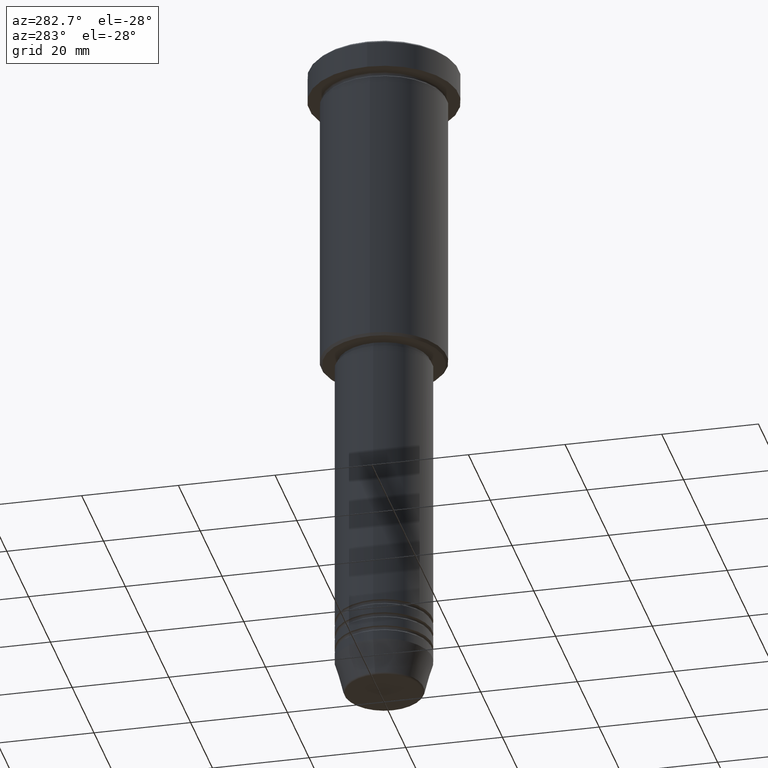
[diagram: clean part render]
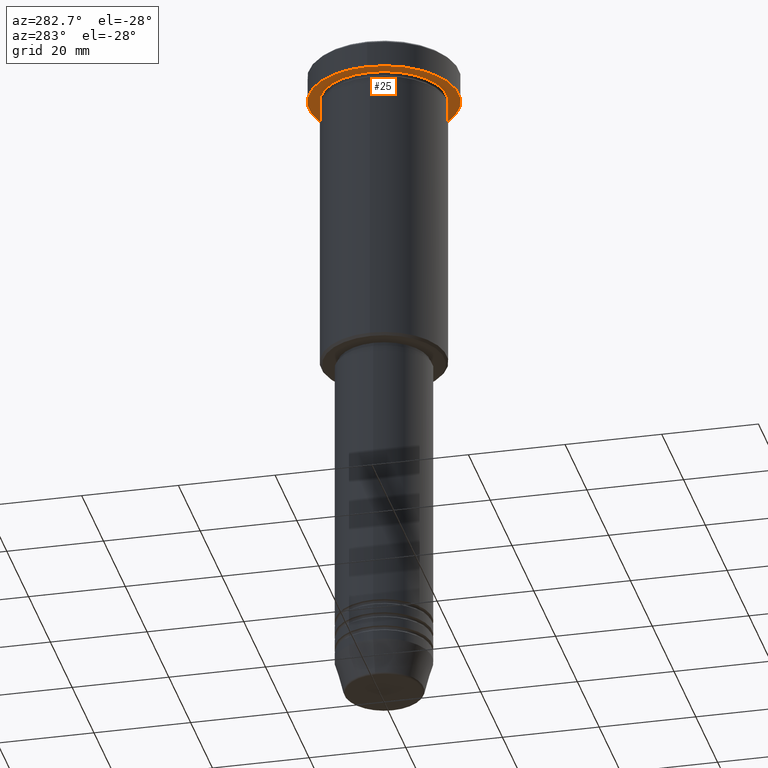
[diagram: same view with one face highlighted and labeled with its STEP entity id]
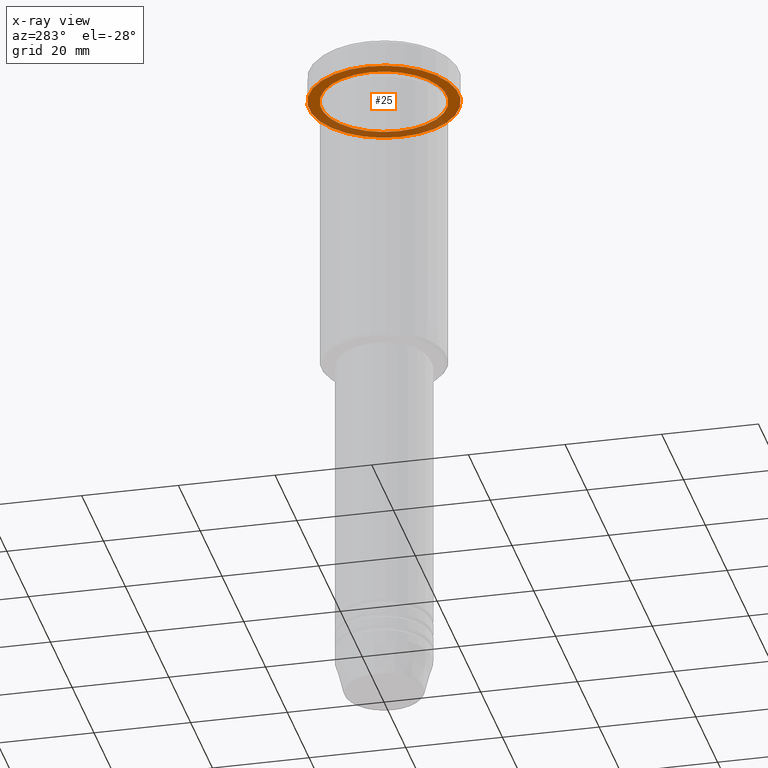
[diagram: x-ray of the same camera — body ghosted, the highlighted face saturated]
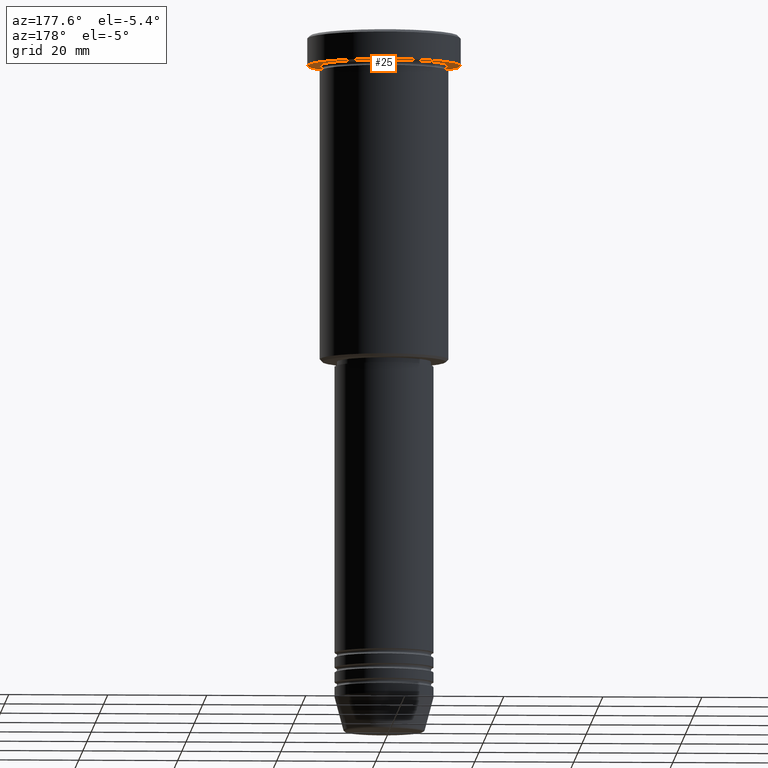
[diagram: same view with one face highlighted and labeled with its STEP entity id]
A machine part, auxiliary view. The second image highlights one B-rep face of the part: STEP entity #25.
The next image is the same camera in x-ray: the body ghosted, the highlighted face saturated — about 32% of this face is hidden behind the body in this view.
A second angle (auxiliary view) of the same face is appended — the face is thin or edge-on in the first view.
In plain terms, the highlighted planar face has unit normal (0, 0, -1).
Its self-contained STEP definition (entity closure, byte-faithful):
#25 = ADVANCED_FACE ( 'NONE', ( #404, #838 ), #482, .T. ) ;
#32 = CARTESIAN_POINT ( 'NONE',  ( 0.000000000000000000, 15.50000000000000000, -5.999999999999995559 ) ) ;
#48 = ORIENTED_EDGE ( 'NONE', *, *, #607, .T. ) ;
#52 = ORIENTED_EDGE ( 'NONE', *, *, #714, .F. ) ;
#54 = CARTESIAN_POINT ( 'NONE',  ( -15.50000000000000000, 1.898202538678397557E-15, -5.999999999999995559 ) ) ;
#68 = CARTESIAN_POINT ( 'NONE',  ( 0.000000000000000000, 0.000000000000000000, -5.999999999999995559 ) ) ;
#73 = VERTEX_POINT ( 'NONE', #767 ) ;
#75 = ORIENTED_EDGE ( 'NONE', *, *, #552, .T. ) ;
#171 = CIRCLE ( 'NONE', #537, 13.00000000000000000 ) ;
#189 = DIRECTION ( 'NONE',  ( -1.000000000000000000, 0.000000000000000000, -0.000000000000000000 ) ) ;
#219 = CIRCLE ( 'NONE', #543, 13.00000000000000000 ) ;
#264 = EDGE_LOOP ( 'NONE', ( #48, #75 ) ) ;
#362 = CARTESIAN_POINT ( 'NONE',  ( 0.000000000000000000, 0.000000000000000000, -5.999999999999995559 ) ) ;
#369 = DIRECTION ( 'NONE',  ( 1.000000000000000000, 0.000000000000000000, 0.000000000000000000 ) ) ;
#398 = VERTEX_POINT ( 'NONE', #54 ) ;
#404 = FACE_BOUND ( 'NONE', #264, .T. ) ;
#447 = DIRECTION ( 'NONE',  ( -0.000000000000000000, -0.000000000000000000, 1.000000000000000000 ) ) ;
#449 = AXIS2_PLACEMENT_3D ( 'NONE', #32, #1113, #189 ) ;
#482 = PLANE ( 'NONE',  #449 ) ;
#497 = EDGE_LOOP ( 'NONE', ( #601, #52 ) ) ;
#516 = CARTESIAN_POINT ( 'NONE',  ( 0.000000000000000000, 0.000000000000000000, -5.999999999999995559 ) ) ;
#537 = AXIS2_PLACEMENT_3D ( 'NONE', #516, #447, #718 ) ;
#543 = AXIS2_PLACEMENT_3D ( 'NONE', #68, #698, #1144 ) ;
#544 = DIRECTION ( 'NONE',  ( 1.000000000000000000, 0.000000000000000000, 0.000000000000000000 ) ) ;
#552 = EDGE_CURVE ( 'NONE', #73, #662, #219, .T. ) ;
#601 = ORIENTED_EDGE ( 'NONE', *, *, #874, .F. ) ;
#607 = EDGE_CURVE ( 'NONE', #662, #73, #171, .T. ) ;
#613 = AXIS2_PLACEMENT_3D ( 'NONE', #362, #1087, #544 ) ;
#662 = VERTEX_POINT ( 'NONE', #821 ) ;
#670 = CIRCLE ( 'NONE', #689, 15.50000000000000000 ) ;
#689 = AXIS2_PLACEMENT_3D ( 'NONE', #805, #1172, #369 ) ;
#698 = DIRECTION ( 'NONE',  ( -0.000000000000000000, -0.000000000000000000, 1.000000000000000000 ) ) ;
#714 = EDGE_CURVE ( 'NONE', #398, #870, #958, .T. ) ;
#718 = DIRECTION ( 'NONE',  ( -1.000000000000000000, 0.000000000000000000, 0.000000000000000000 ) ) ;
#767 = CARTESIAN_POINT ( 'NONE',  ( 13.00000000000000000, 1.592040838891559095E-15, -5.999999999999994671 ) ) ;
#805 = CARTESIAN_POINT ( 'NONE',  ( 0.000000000000000000, 0.000000000000000000, -5.999999999999995559 ) ) ;
#821 = CARTESIAN_POINT ( 'NONE',  ( -13.00000000000000000, 0.000000000000000000, -5.999999999999994671 ) ) ;
#838 = FACE_OUTER_BOUND ( 'NONE', #497, .T. ) ;
#870 = VERTEX_POINT ( 'NONE', #1162 ) ;
#874 = EDGE_CURVE ( 'NONE', #870, #398, #670, .T. ) ;
#958 = CIRCLE ( 'NONE', #613, 15.50000000000000000 ) ;
#1087 = DIRECTION ( 'NONE',  ( -0.000000000000000000, -0.000000000000000000, 1.000000000000000000 ) ) ;
#1113 = DIRECTION ( 'NONE',  ( 0.000000000000000000, 0.000000000000000000, -1.000000000000000000 ) ) ;
#1144 = DIRECTION ( 'NONE',  ( -1.000000000000000000, 0.000000000000000000, 0.000000000000000000 ) ) ;
#1162 = CARTESIAN_POINT ( 'NONE',  ( 15.50000000000000000, 0.000000000000000000, -5.999999999999995559 ) ) ;
#1172 = DIRECTION ( 'NONE',  ( -0.000000000000000000, -0.000000000000000000, 1.000000000000000000 ) ) ;